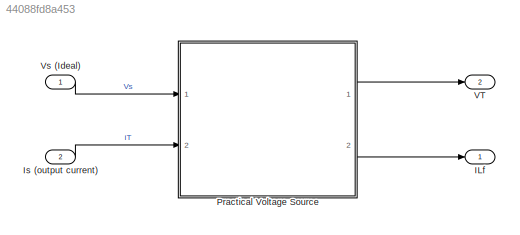
MODEL slx_44088fd8a453
KIND model
CONFIG AbsTol = auto
CONFIG EnableMultiTasking = off
CONFIG FixedStep = Ts
CONFIG MaxStep = auto
CONFIG MinStep = auto
CONFIG PostLoadFcn = , if any(exist('dsrtsu_mdlpostloadfcn', 'file') == [2, 3, 6]), try dsrtsu_mdlpostloadfcn('Execute', bdroot); catch fprintf('Error in PostLoadFcn (dsrtsu_mdlpostloadfcn) for model "%s":\n %s\n', bdroot, lasterr); end, end, \ninit_practical_voltage_source;
CONFIG RelTol = 1e-3
CONFIG SampleTimeConstraint = Unconstrained
CONFIG Solver = ode1
CONFIG SolverName = ode1
CONFIG StartTime = 0.0
CONFIG StopTime = 2e-3
BLOCK [Outport] ILf
  IconDisplay = Port number
BLOCK [Inport] Is (output current)
  IconDisplay = Port number
  Port = 2
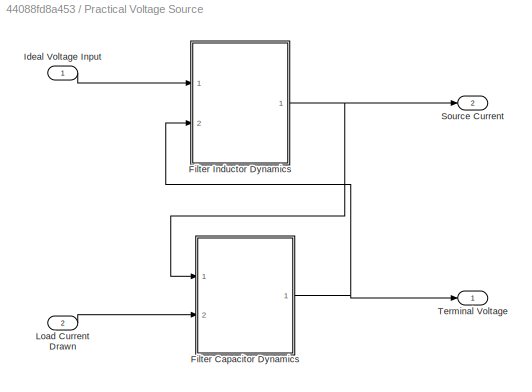
BLOCK [SubSystem] Practical Voltage Source
  Ports = [2, 2]
  RequestExecContextInheritance = off
  Variant = off
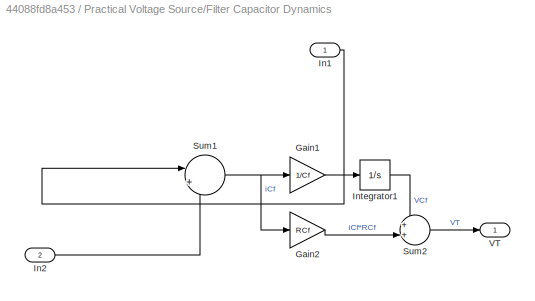
BLOCK [SubSystem] Practical Voltage Source/Filter Capacitor Dynamics
  Ports = [2, 1]
  RequestExecContextInheritance = off
  Variant = off
BLOCK [Gain] Practical Voltage Source/Filter Capacitor Dynamics/Gain1
  Gain = 1/Cf
  OutDataTypeStr = Inherit: Inherit via internal rule
  ParamDataTypeStr = Inherit: Inherit via internal rule
  SaturateOnIntegerOverflow = off
BLOCK [Gain] Practical Voltage Source/Filter Capacitor Dynamics/Gain2
  Gain = RCf
  OutDataTypeStr = Inherit: Inherit via internal rule
  ParamDataTypeStr = Inherit: Inherit via internal rule
  SaturateOnIntegerOverflow = off
BLOCK [Inport] Practical Voltage Source/Filter Capacitor Dynamics/In1
  IconDisplay = Port number
BLOCK [Inport] Practical Voltage Source/Filter Capacitor Dynamics/In2
  IconDisplay = Port number
  Port = 2
BLOCK [Integrator] Practical Voltage Source/Filter Capacitor Dynamics/Integrator1
  InitialCondition = v_C_init
  Ports = [1, 1]
BLOCK [Sum] Practical Voltage Source/Filter Capacitor Dynamics/Sum1
  IconShape = round
  InputSameDT = off
  Inputs = |+-
  OutDataTypeStr = Inherit: Inherit via internal rule
  Ports = [2, 1]
  SaturateOnIntegerOverflow = off
BLOCK [Sum] Practical Voltage Source/Filter Capacitor Dynamics/Sum2
  IconShape = round
  InputSameDT = off
  Inputs = ++|
  OutDataTypeStr = Inherit: Inherit via internal rule
  Ports = [2, 1]
  SaturateOnIntegerOverflow = off
BLOCK [Outport] Practical Voltage Source/Filter Capacitor Dynamics/VT
  IconDisplay = Port number
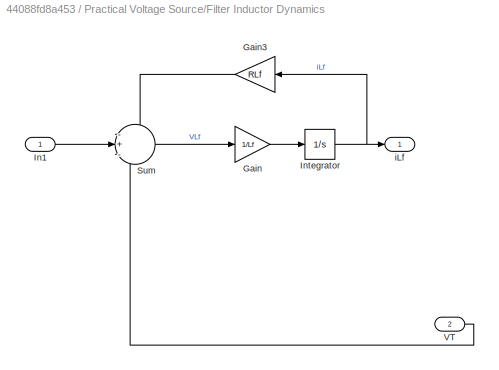
BLOCK [SubSystem] Practical Voltage Source/Filter Inductor Dynamics
  Ports = [2, 1]
  RequestExecContextInheritance = off
  Variant = off
BLOCK [Gain] Practical Voltage Source/Filter Inductor Dynamics/Gain
  Gain = 1/Lf
  OutDataTypeStr = Inherit: Inherit via internal rule
  ParamDataTypeStr = Inherit: Inherit via internal rule
  SaturateOnIntegerOverflow = off
BLOCK [Gain] Practical Voltage Source/Filter Inductor Dynamics/Gain3
  Gain = RLf
  OutDataTypeStr = Inherit: Inherit via internal rule
  ParamDataTypeStr = Inherit: Inherit via internal rule
  SaturateOnIntegerOverflow = off
BLOCK [Inport] Practical Voltage Source/Filter Inductor Dynamics/In1
  IconDisplay = Port number
BLOCK [Integrator] Practical Voltage Source/Filter Inductor Dynamics/Integrator
  InitialCondition = i_L_init
  Ports = [1, 1]
BLOCK [Sum] Practical Voltage Source/Filter Inductor Dynamics/Sum
  IconShape = round
  InputSameDT = off
  Inputs = -+-
  OutDataTypeStr = Inherit: Inherit via internal rule
  Ports = [3, 1]
  SaturateOnIntegerOverflow = off
BLOCK [Inport] Practical Voltage Source/Filter Inductor Dynamics/VT
  IconDisplay = Port number
  Port = 2
BLOCK [Outport] Practical Voltage Source/Filter Inductor Dynamics/iLf
  IconDisplay = Port number
BLOCK [Inport] Practical Voltage Source/Ideal Voltage Input
  IconDisplay = Port number
BLOCK [Inport] Practical Voltage Source/Load Current Drawn
  IconDisplay = Port number
  Port = 2
BLOCK [Outport] Practical Voltage Source/Source Current
  IconDisplay = Port number
  Port = 2
BLOCK [Outport] Practical Voltage Source/Terminal Voltage
  IconDisplay = Port number
BLOCK [Outport] VT
  IconDisplay = Port number
  Port = 2
BLOCK [Inport] Vs (Ideal)
  IconDisplay = Port number
LINE Is (output current):1 -> Practical Voltage Source:2
LINE Practical Voltage Source/Filter Capacitor Dynamics/Gain1:1 -> Practical Voltage Source/Filter Capacitor Dynamics/Integrator1:1
LINE Practical Voltage Source/Filter Capacitor Dynamics/Gain2:1 -> Practical Voltage Source/Filter Capacitor Dynamics/Sum2:2
LINE Practical Voltage Source/Filter Capacitor Dynamics/In1:1 -> Practical Voltage Source/Filter Capacitor Dynamics/Sum1:1
LINE Practical Voltage Source/Filter Capacitor Dynamics/In2:1 -> Practical Voltage Source/Filter Capacitor Dynamics/Sum1:2
LINE Practical Voltage Source/Filter Capacitor Dynamics/Integrator1:1 -> Practical Voltage Source/Filter Capacitor Dynamics/Sum2:1
NET Practical Voltage Source/Filter Capacitor Dynamics/Sum1:1 -> Practical Voltage Source/Filter Capacitor Dynamics/Gain1:1, Practical Voltage Source/Filter Capacitor Dynamics/Gain2:1
LINE Practical Voltage Source/Filter Capacitor Dynamics/Sum2:1 -> Practical Voltage Source/Filter Capacitor Dynamics/VT:1
NET Practical Voltage Source/Filter Capacitor Dynamics:1 -> Practical Voltage Source/Filter Inductor Dynamics:2, Practical Voltage Source/Terminal Voltage:1
LINE Practical Voltage Source/Filter Inductor Dynamics/Gain3:1 -> Practical Voltage Source/Filter Inductor Dynamics/Sum:1
LINE Practical Voltage Source/Filter Inductor Dynamics/Gain:1 -> Practical Voltage Source/Filter Inductor Dynamics/Integrator:1
LINE Practical Voltage Source/Filter Inductor Dynamics/In1:1 -> Practical Voltage Source/Filter Inductor Dynamics/Sum:2
NET Practical Voltage Source/Filter Inductor Dynamics/Integrator:1 -> Practical Voltage Source/Filter Inductor Dynamics/Gain3:1, Practical Voltage Source/Filter Inductor Dynamics/iLf:1
LINE Practical Voltage Source/Filter Inductor Dynamics/Sum:1 -> Practical Voltage Source/Filter Inductor Dynamics/Gain:1
LINE Practical Voltage Source/Filter Inductor Dynamics/VT:1 -> Practical Voltage Source/Filter Inductor Dynamics/Sum:3
NET Practical Voltage Source/Filter Inductor Dynamics:1 -> Practical Voltage Source/Filter Capacitor Dynamics:1, Practical Voltage Source/Source Current:1
LINE Practical Voltage Source/Ideal Voltage Input:1 -> Practical Voltage Source/Filter Inductor Dynamics:1
LINE Practical Voltage Source/Load Current Drawn:1 -> Practical Voltage Source/Filter Capacitor Dynamics:2
LINE Practical Voltage Source:1 -> VT:1
LINE Practical Voltage Source:2 -> ILf:1
LINE Vs (Ideal):1 -> Practical Voltage Source:1
note: NET lines group one-source signal fan-out (src -> all destinations, sorted); 1:1 wires keep LINE
